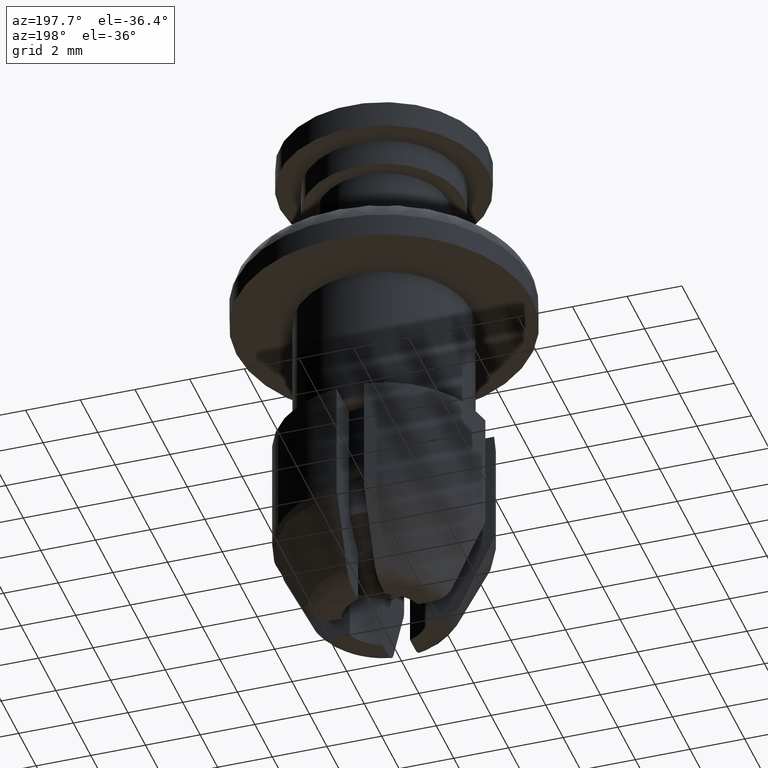
[diagram: clean part render]
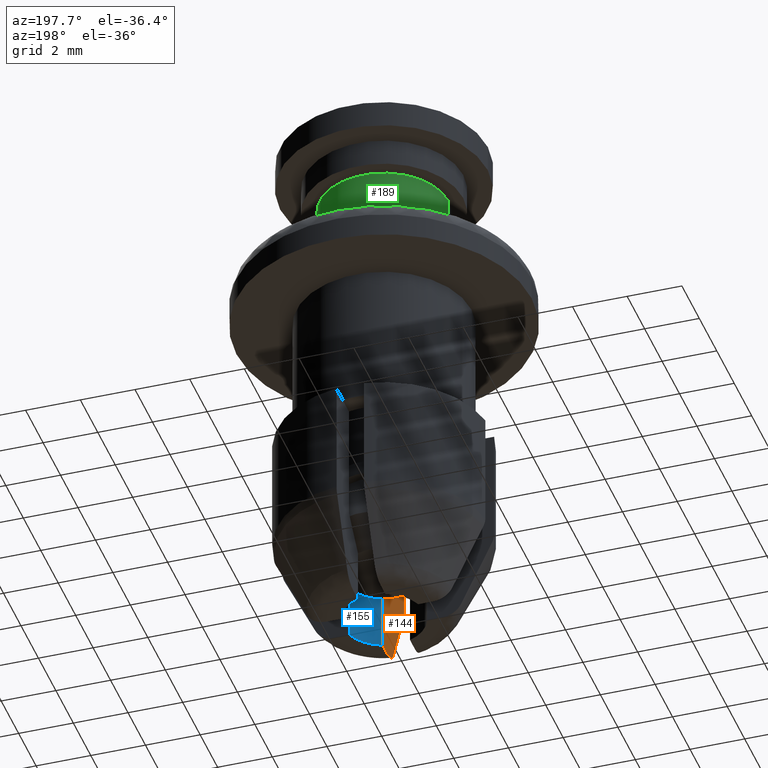
[diagram: same view with three faces highlighted in distinct colors, each labeled with its STEP entity id]
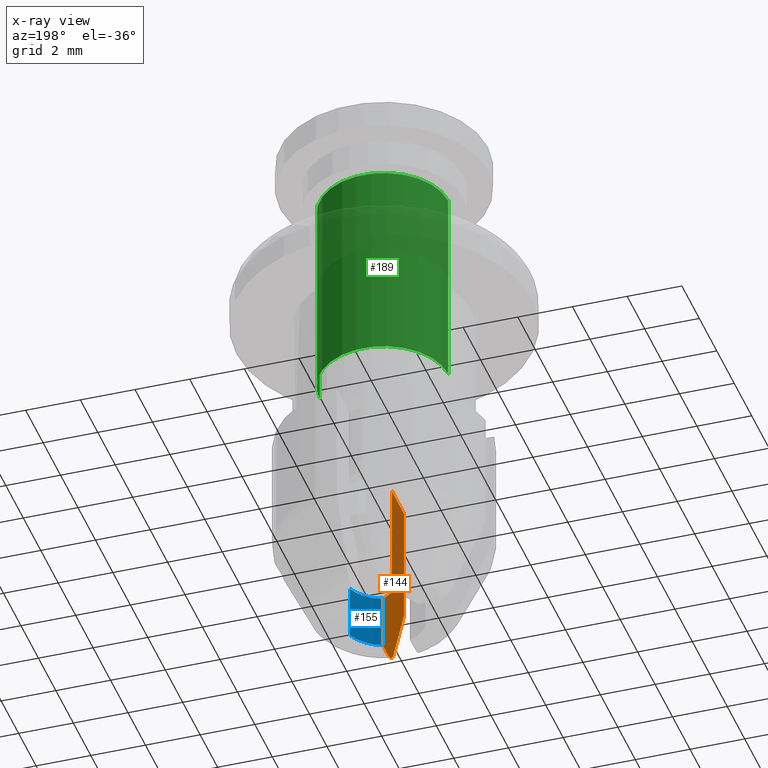
[diagram: x-ray of the same camera — body ghosted, the three highlighted faces saturated]
A machine part, auxiliary view with three faces highlighted in distinct colors.
The next image is the same camera in x-ray (body ghosted, the three faces saturated) — at least one of them is partly hidden behind the body in this view.
Their STEP definitions:

[orange] entity #144 — the highlighted planar face has unit normal (-1, 0, 0).
#144=ADVANCED_FACE('',(#514),#513,.T.);
#513=PLANE('',#1230);
#514=FACE_OUTER_BOUND('',#1231,.T.);
#1227=CARTESIAN_POINT('',(5.00000000000E-01,-4.11319477016E+00,-1.54403300000E+01));
#1228=DIRECTION('',(-1.00000000000E+00,0.00000000000E+00,0.00000000000E+00));
#1229=DIRECTION('',(0.00000000000E+00,0.00000000000E+00,1.00000000000E+00));
#1230=AXIS2_PLACEMENT_3D('',#1227,#1228,#1229);
#1231=EDGE_LOOP('',(#1698,#1699,#1700,#1701,#1702,#1703,#1704,#1705,#1706,#1707));
#1698=ORIENTED_EDGE('',*,*,#2014,.T.);
#1699=ORIENTED_EDGE('',*,*,#2004,.F.);
#1700=ORIENTED_EDGE('',*,*,#2048,.F.);
#1701=ORIENTED_EDGE('',*,*,#2049,.T.);
#1702=ORIENTED_EDGE('',*,*,#1977,.F.);
#1703=ORIENTED_EDGE('',*,*,#2050,.F.);
#1704=ORIENTED_EDGE('',*,*,#1991,.T.);
#1705=ORIENTED_EDGE('',*,*,#2030,.T.);
#1706=ORIENTED_EDGE('',*,*,#2037,.T.);
#1707=ORIENTED_EDGE('',*,*,#2023,.T.);
#1977=EDGE_CURVE('',#2347,#2333,#2354,.T.);
#1991=EDGE_CURVE('',#2449,#2442,#2450,.T.);
#2004=EDGE_CURVE('',#2532,#2539,#2540,.T.);
#2014=EDGE_CURVE('',#2605,#2539,#2606,.T.);
#2023=EDGE_CURVE('',#2665,#2605,#2666,.T.);
#2030=EDGE_CURVE('',#2442,#2705,#2712,.T.);
#2037=EDGE_CURVE('',#2705,#2665,#2756,.T.);
#2048=EDGE_CURVE('',#2830,#2532,#2831,.T.);
#2049=EDGE_CURVE('',#2830,#2333,#2837,.T.);
#2050=EDGE_CURVE('',#2449,#2347,#2843,.T.);
#2333=VERTEX_POINT('',#3562);
#2347=VERTEX_POINT('',#3572);
#2354=(BOUNDED_CURVE() B_SPLINE_CURVE(3,(#3577,#3578,#3579,#3580),.UNSPECIFIED.,.F.,.F.) B_SPLINE_CURVE_WITH_KNOTS((4,4),(9.30195871345E-03,1.07405298363E-02),.UNSPECIFIED.) CURVE() GEOMETRIC_REPRESENTATION_ITEM() RATIONAL_B_SPLINE_CURVE((1.00000000000E+00,1.00000000000E+00,1.00000000000E+00,1.00000000000E+00)) REPRESENTATION_ITEM('') );
#2442=VERTEX_POINT('',#3634);
#2449=VERTEX_POINT('',#3639);
#2450=LINE('',#3640,#3641);
#2532=VERTEX_POINT('',#3692);
#2539=VERTEX_POINT('',#3697);
#2540=LINE('',#3698,#3699);
#2605=VERTEX_POINT('',#3737);
#2606=LINE('',#3738,#3739);
#2665=VERTEX_POINT('',#3788);
#2666=(BOUNDED_CURVE() B_SPLINE_CURVE(3,(#3789,#3790,#3791,#3792,#3793,#3794),.UNSPECIFIED.,.F.,.F.) B_SPLINE_CURVE_WITH_KNOTS((4,2,4),(4.60532861707E-03,4.76814485432E-03,4.93096109157E-03),.UNSPECIFIED.) CURVE() GEOMETRIC_REPRESENTATION_ITEM() RATIONAL_B_SPLINE_CURVE((1.00000000000E+00,1.00000000000E+00,1.00000000000E+00,1.00000000000E+00,1.00000000000E+00,1.00000000000E+00)) REPRESENTATION_ITEM('') );
#2705=VERTEX_POINT('',#3824);
#2712=(BOUNDED_CURVE() B_SPLINE_CURVE(3,(#3829,#3830,#3831,#3832,#3833,#3834),.UNSPECIFIED.,.F.,.F.) B_SPLINE_CURVE_WITH_KNOTS((4,2,4),(4.28628102214E-03,4.72080951359E-03,5.15533800505E-03),.UNSPECIFIED.) CURVE() GEOMETRIC_REPRESENTATION_ITEM() RATIONAL_B_SPLINE_CURVE((1.00000000000E+00,1.00000000000E+00,1.00000000000E+00,1.00000000000E+00,1.00000000000E+00,1.00000000000E+00)) REPRESENTATION_ITEM('') );
#2756=(BOUNDED_CURVE() B_SPLINE_CURVE(3,(#3865,#3866,#3867,#3868),.UNSPECIFIED.,.F.,.F.) B_SPLINE_CURVE_WITH_KNOTS((4,4),(1.89596754677E-02,2.16228946496E-02),.UNSPECIFIED.) CURVE() GEOMETRIC_REPRESENTATION_ITEM() RATIONAL_B_SPLINE_CURVE((1.00000000000E+00,1.00000000000E+00,1.00000000000E+00,1.00000000000E+00)) REPRESENTATION_ITEM('') );
#2830=VERTEX_POINT('',#3917);
#2831=LINE('',#3918,#3919);
#2837=LINE('',#3921,#3922);
#2843=LINE('',#3924,#3925);
#3562=CARTESIAN_POINT('',(5.00000000000E-01,-2.44948974278E+00,-1.17003633768E+01));
#3572=CARTESIAN_POINT('',(5.00000000000E-01,-1.41421356237E+00,-1.27003633768E+01));
#3577=CARTESIAN_POINT('',(5.00000000000E-01,-1.41421356237E+00,-1.27003633768E+01));
#3578=CARTESIAN_POINT('',(5.00000000000E-01,-1.76332670225E+00,-1.23712163520E+01));
#3579=CARTESIAN_POINT('',(5.00000000000E-01,-2.10676617351E+00,-1.20361625238E+01));
#3580=CARTESIAN_POINT('',(5.00000000000E-01,-2.44948974278E+00,-1.17003633768E+01));
#3634=CARTESIAN_POINT('',(5.00000000000E-01,-1.95961775865E+00,-1.47003000000E+01));
#3639=CARTESIAN_POINT('',(5.00000000000E-01,-1.41421356237E+00,-1.47003000000E+01));
#3640=CARTESIAN_POINT('',(5.00000000000E-01,-1.41421356237E+00,-1.47003000000E+01));
#3641=VECTOR('',#3642,5.45404196273E-01);
#3642=DIRECTION('',(0.00000000000E+00,-1.00000000000E+00,0.00000000000E+00));
#3692=CARTESIAN_POINT('',(5.00000000000E-01,-3.16069612586E+00,-7.30000000000E+00));
#3697=CARTESIAN_POINT('',(5.00000000000E-01,-3.86781592116E+00,-7.30000000000E+00));
#3698=CARTESIAN_POINT('',(5.00000000000E-01,-3.16069612586E+00,-7.30000000000E+00));
#3699=VECTOR('',#3700,7.07119795307E-01);
#3700=DIRECTION('',(0.00000000000E+00,-1.00000000000E+00,0.00000000000E+00));
#3737=CARTESIAN_POINT('',(5.00000000000E-01,-3.86781592116E+00,-1.15339000000E+01));
#3738=CARTESIAN_POINT('',(5.00000000000E-01,-3.86781592116E+00,-1.15339000000E+01));
#3739=VECTOR('',#3740,4.23390000000E+00);
#3740=DIRECTION('',(0.00000000000E+00,0.00000000000E+00,1.00000000000E+00));
#3788=CARTESIAN_POINT('',(5.00000000000E-01,-3.79692007949E+00,-1.18510000000E+01));
#3789=CARTESIAN_POINT('',(5.00000000000E-01,-3.79692007949E+00,-1.18510000000E+01));
#3790=CARTESIAN_POINT('',(5.00000000000E-01,-3.82025710276E+00,-1.18014221822E+01));
#3791=CARTESIAN_POINT('',(5.00000000000E-01,-3.83817154966E+00,-1.17489853033E+01));
#3792=CARTESIAN_POINT('',(5.00000000000E-01,-3.86188808504E+00,-1.16425175385E+01));
#3793=CARTESIAN_POINT('',(5.00000000000E-01,-3.86783284218E+00,-1.15885690052E+01));
#3794=CARTESIAN_POINT('',(5.00000000000E-01,-3.86781592116E+00,-1.15339000000E+01));
#3824=CARTESIAN_POINT('',(5.00000000000E-01,-2.65942644146E+00,-1.42587841873E+01));
#3829=CARTESIAN_POINT('',(5.00000000000E-01,-1.95961775865E+00,-1.47003000000E+01));
#3830=CARTESIAN_POINT('',(5.00000000000E-01,-2.10523021489E+00,-1.47003000000E+01));
#3831=CARTESIAN_POINT('',(5.00000000000E-01,-2.25077643428E+00,-1.46595655480E+01));
#3832=CARTESIAN_POINT('',(5.00000000000E-01,-2.49848132678E+00,-1.45044318890E+01));
#3833=CARTESIAN_POINT('',(5.00000000000E-01,-2.59900524852E+00,-1.43903759020E+01));
#3834=CARTESIAN_POINT('',(5.00000000000E-01,-2.65942644146E+00,-1.42587841873E+01));
#3865=CARTESIAN_POINT('',(5.00000000000E-01,-2.65942644146E+00,-1.42587841873E+01));
#3866=CARTESIAN_POINT('',(5.00000000000E-01,-3.04018454349E+00,-1.34569561478E+01));
#3867=CARTESIAN_POINT('',(5.00000000000E-01,-3.41887552802E+00,-1.26541283026E+01));
#3868=CARTESIAN_POINT('',(5.00000000000E-01,-3.79692007949E+00,-1.18510000000E+01));
#3917=CARTESIAN_POINT('',(5.00000000000E-01,-2.44948974278E+00,-7.30000000000E+00));
#3918=CARTESIAN_POINT('',(5.00000000000E-01,-2.44948974278E+00,-7.30000000000E+00));
#3919=VECTOR('',#3920,7.11206383073E-01);
#3920=DIRECTION('',(0.00000000000E+00,-1.00000000000E+00,0.00000000000E+00));
#3921=CARTESIAN_POINT('',(5.00000000000E-01,-2.44948974278E+00,-7.30000000000E+00));
#3922=VECTOR('',#3923,4.40036337678E+00);
#3923=DIRECTION('',(0.00000000000E+00,0.00000000000E+00,-1.00000000000E+00));
#3924=CARTESIAN_POINT('',(5.00000000000E-01,-1.41421356237E+00,-1.47003000000E+01));
#3925=VECTOR('',#3926,1.99993662322E+00);
#3926=DIRECTION('',(0.00000000000E+00,0.00000000000E+00,1.00000000000E+00));

[blue] entity #155 — the highlighted cylindrical surface (partial cylindrical patch) has radius 1.5 mm, axis along (0, 0, 1).
#155=ADVANCED_FACE('',(#624),#623,.F.);
#623=CYLINDRICAL_SURFACE('',#1285,1.50000000000E+00);
#624=FACE_OUTER_BOUND('',#1286,.T.);
#1282=CARTESIAN_POINT('',(0.00000000000E+00,0.00000000000E+00,0.00000000000E+00));
#1283=DIRECTION('',(-0.00000000000E+00,-0.00000000000E+00,1.00000000000E+00));
#1284=DIRECTION('',(1.00000000000E+00,-0.00000000000E+00,-0.00000000000E+00));
#1285=AXIS2_PLACEMENT_3D('',#1282,#1283,#1284);
#1286=EDGE_LOOP('',(#1782,#1783,#1784,#1785));
#1782=ORIENTED_EDGE('',*,*,#1976,.F.);
#1783=ORIENTED_EDGE('',*,*,#2078,.T.);
#1784=ORIENTED_EDGE('',*,*,#1992,.T.);
#1785=ORIENTED_EDGE('',*,*,#2050,.T.);
#1976=EDGE_CURVE('',#2340,#2347,#2348,.T.);
#1992=EDGE_CURVE('',#2435,#2449,#2456,.T.);
#2050=EDGE_CURVE('',#2449,#2347,#2843,.T.);
#2078=EDGE_CURVE('',#2340,#2435,#3024,.T.);
#2340=VERTEX_POINT('',#3567);
#2347=VERTEX_POINT('',#3572);
#2348=CIRCLE('',#3576,1.50000000000E+00);
#2435=VERTEX_POINT('',#3630);
#2449=VERTEX_POINT('',#3639);
#2456=CIRCLE('',#3646,1.50000000000E+00);
#2843=LINE('',#3924,#3925);
#3024=LINE('',#4035,#4036);
#3567=CARTESIAN_POINT('',(1.41421356237E+00,-5.00000000000E-01,-1.27003633768E+01));
#3572=CARTESIAN_POINT('',(5.00000000000E-01,-1.41421356237E+00,-1.27003633768E+01));
#3573=CARTESIAN_POINT('',(0.00000000000E+00,0.00000000000E+00,-1.27003633768E+01));
#3574=DIRECTION('',(0.00000000000E+00,0.00000000000E+00,-1.00000000000E+00));
#3575=DIRECTION('',(1.00000000000E+00,-0.00000000000E+00,-0.00000000000E+00));
#3576=AXIS2_PLACEMENT_3D('',#3573,#3574,#3575);
#3630=CARTESIAN_POINT('',(1.41421356237E+00,-5.00000000000E-01,-1.47003000000E+01));
#3639=CARTESIAN_POINT('',(5.00000000000E-01,-1.41421356237E+00,-1.47003000000E+01));
#3643=CARTESIAN_POINT('',(0.00000000000E+00,0.00000000000E+00,-1.47003000000E+01));
#3644=DIRECTION('',(0.00000000000E+00,0.00000000000E+00,-1.00000000000E+00));
#3645=DIRECTION('',(1.00000000000E+00,-0.00000000000E+00,-0.00000000000E+00));
#3646=AXIS2_PLACEMENT_3D('',#3643,#3644,#3645);
#3924=CARTESIAN_POINT('',(5.00000000000E-01,-1.41421356237E+00,-1.47003000000E+01));
#3925=VECTOR('',#3926,1.99993662322E+00);
#3926=DIRECTION('',(0.00000000000E+00,0.00000000000E+00,1.00000000000E+00));
#4035=CARTESIAN_POINT('',(1.41421356237E+00,-5.00000000000E-01,-1.27003633768E+01));
#4036=VECTOR('',#4037,1.99993662322E+00);
#4037=DIRECTION('',(0.00000000000E+00,0.00000000000E+00,-1.00000000000E+00));

[green] entity #189 — the highlighted cylindrical surface (partial cylindrical patch) has radius 2.35 mm, axis along (0, 0, 1).
#189=ADVANCED_FACE('',(#968),#967,.T.);
#967=CYLINDRICAL_SURFACE('',#1551,2.35000000000E+00);
#968=FACE_OUTER_BOUND('',#1552,.T.);
#1548=CARTESIAN_POINT('',(0.00000000000E+00,0.00000000000E+00,0.00000000000E+00));
#1549=DIRECTION('',(-0.00000000000E+00,-0.00000000000E+00,1.00000000000E+00));
#1550=DIRECTION('',(1.00000000000E+00,-0.00000000000E+00,-0.00000000000E+00));
#1551=AXIS2_PLACEMENT_3D('',#1548,#1549,#1550);
#1552=EDGE_LOOP('',(#1938,#1939,#1940,#1941));
#1938=ORIENTED_EDGE('',*,*,#2109,.T.);
#1939=ORIENTED_EDGE('',*,*,#2138,.F.);
#1940=ORIENTED_EDGE('',*,*,#2135,.F.);
#1941=ORIENTED_EDGE('',*,*,#2139,.T.);
#2109=EDGE_CURVE('',#3221,#3220,#3228,.T.);
#2135=EDGE_CURVE('',#3378,#3377,#3397,.T.);
#2138=EDGE_CURVE('',#3377,#3220,#3415,.T.);
#2139=EDGE_CURVE('',#3378,#3221,#3421,.T.);
#3220=VERTEX_POINT('',#4151);
#3221=VERTEX_POINT('',#4152);
#3228=CIRCLE('',#4160,2.35000000000E+00);
#3377=VERTEX_POINT('',#4238);
#3378=VERTEX_POINT('',#4239);
#3397=CIRCLE('',#4251,2.35000000000E+00);
#3415=(BOUNDED_CURVE() B_SPLINE_CURVE(1,(#4256,#4257),.UNSPECIFIED.,.F.,.F.) B_SPLINE_CURVE_WITH_KNOTS((2,2),(8.33333366442E-02,9.16666667899E-01),.UNSPECIFIED.) CURVE() GEOMETRIC_REPRESENTATION_ITEM() RATIONAL_B_SPLINE_CURVE((1.00000000000E+00,1.00000000000E+00)) REPRESENTATION_ITEM('') );
#3421=(BOUNDED_CURVE() B_SPLINE_CURVE(1,(#4258,#4259),.UNSPECIFIED.,.F.,.F.) B_SPLINE_CURVE_WITH_KNOTS((2,2),(8.33333333333E-02,9.16666666667E-01),.UNSPECIFIED.) CURVE() GEOMETRIC_REPRESENTATION_ITEM() RATIONAL_B_SPLINE_CURVE((7.50000000000E-01,7.50000000000E-01)) REPRESENTATION_ITEM('') );
#4151=CARTESIAN_POINT('',(2.35000000000E+00,0.00000000000E+00,0.00000000000E+00));
#4152=CARTESIAN_POINT('',(-2.35000000000E+00,0.00000000000E+00,0.00000000000E+00));
#4157=CARTESIAN_POINT('',(0.00000000000E+00,0.00000000000E+00,0.00000000000E+00));
#4158=DIRECTION('',(-0.00000000000E+00,0.00000000000E+00,-1.00000000000E+00));
#4159=DIRECTION('',(-1.00000000000E+00,-1.22460635382E-16,0.00000000000E+00));
#4160=AXIS2_PLACEMENT_3D('',#4157,#4158,#4159);
#4238=CARTESIAN_POINT('',(2.35000000000E+00,0.00000000000E+00,-7.50000000000E+00));
#4239=CARTESIAN_POINT('',(-2.35000000000E+00,0.00000000000E+00,-7.50000000000E+00));
#4248=CARTESIAN_POINT('',(0.00000000000E+00,0.00000000000E+00,-7.50000000000E+00));
#4249=DIRECTION('',(-0.00000000000E+00,0.00000000000E+00,-1.00000000000E+00));
#4250=DIRECTION('',(-1.00000000000E+00,-1.22460635382E-16,0.00000000000E+00));
#4251=AXIS2_PLACEMENT_3D('',#4248,#4249,#4250);
#4256=CARTESIAN_POINT('',(2.35000000000E+00,0.00000000000E+00,-7.49999997020E+00));
#4257=CARTESIAN_POINT('',(2.35000000000E+00,0.00000000000E+00,1.10948866761E-08));
#4258=CARTESIAN_POINT('',(-2.35000000000E+00,-2.96059473233E-16,-7.50000000000E+00));
#4259=CARTESIAN_POINT('',(-2.35000000000E+00,-2.96059473233E-16,-1.48029736617E-16));